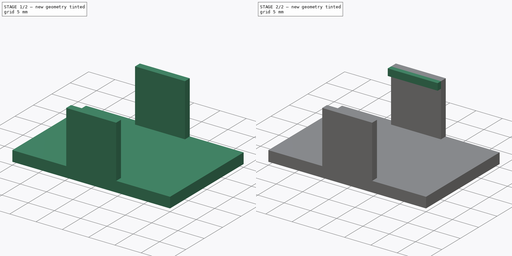
[diagram: build sequence overview — one tinted view per stage of 2, left to right]
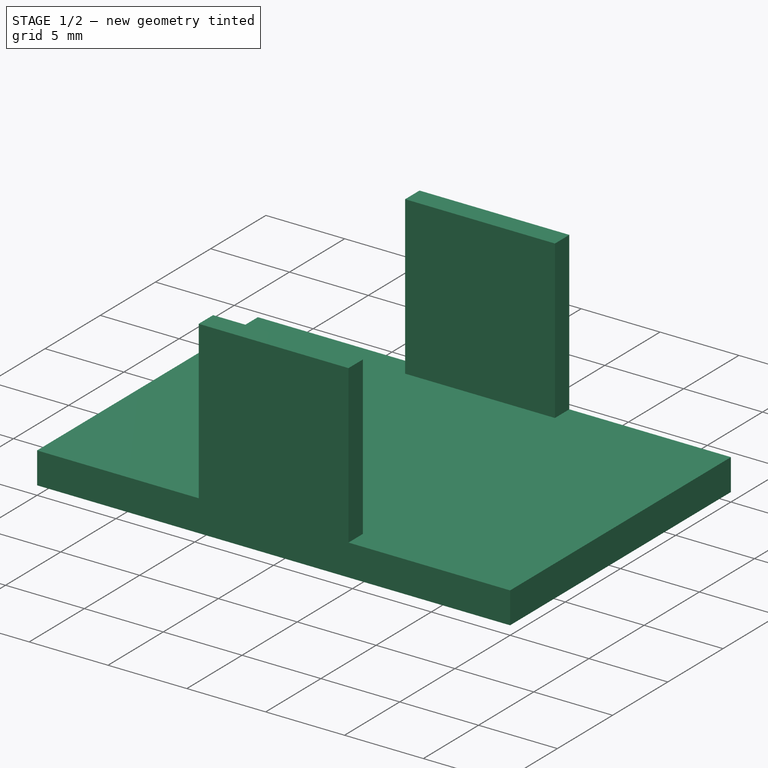
[diagram: stage 1 of 2 — iso view after this stage's code; geometry added in this stage tinted green]
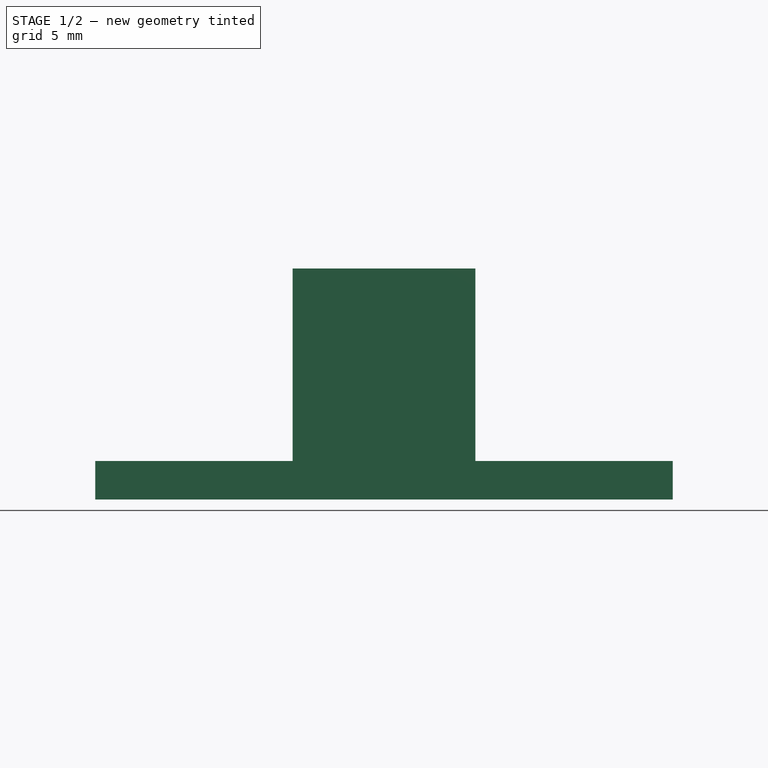
[diagram: stage 1 of 2 — front view after this stage's code; geometry added in this stage tinted green]
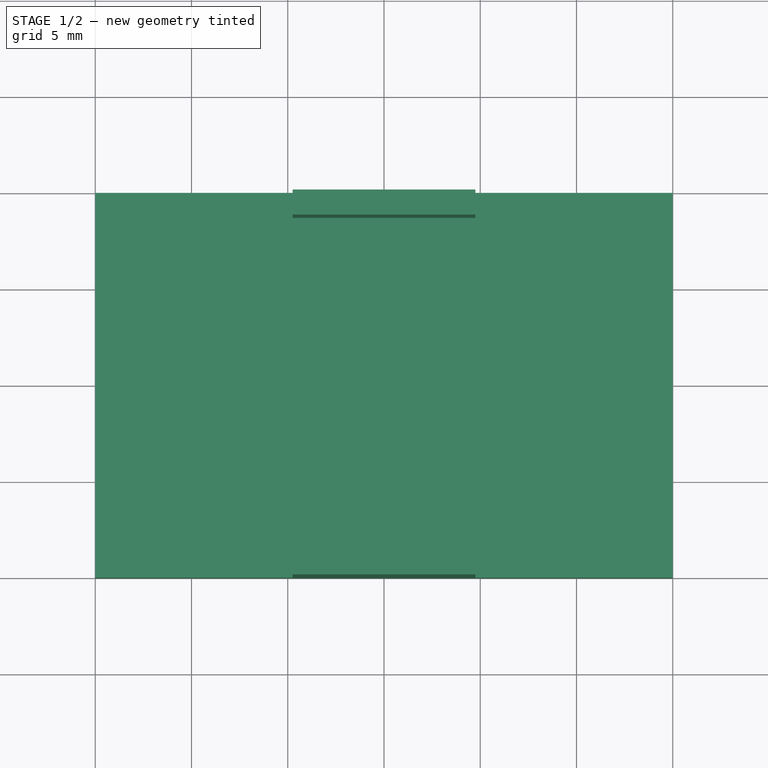
[diagram: stage 1 of 2 — top view after this stage's code; geometry added in this stage tinted green]
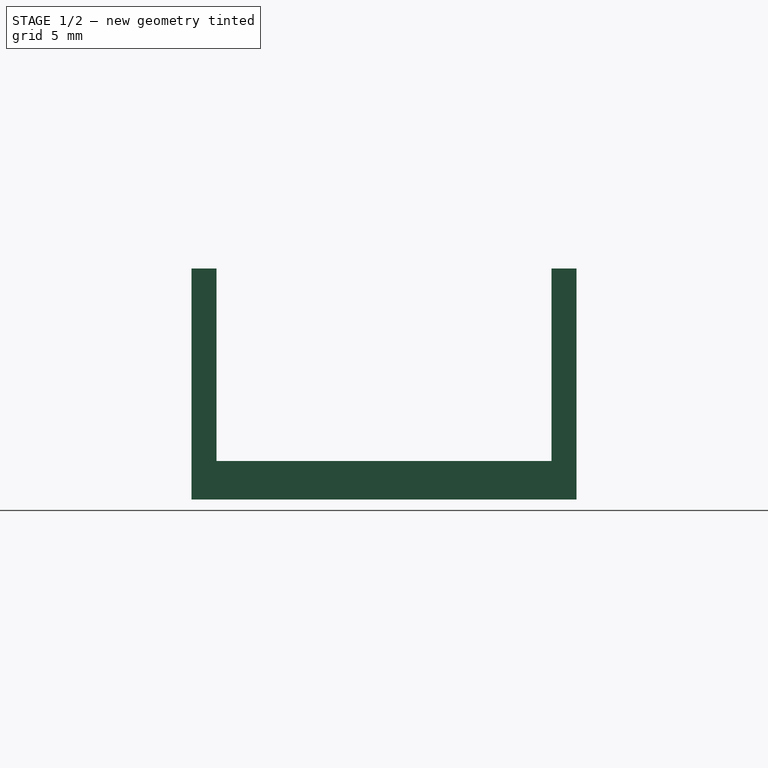
[diagram: stage 1 of 2 — right view after this stage's code; geometry added in this stage tinted green]
FCSTD DOCUMENT  (FreeCAD 0.21R33675 (Git))
Label: lid
License: All rights reserved
LicenseURL: http://en.wikipedia.org/wiki/All_rights_reserved
objects: Sketcher::SketchObject×3, PartDesign::Pad×3, PartDesign::Body×1
note: 10 computed .brp shape members not serialized (recipe doc carries the construction recipe); baked Part::Feature solids carry a one-line shape summary decoded from their .brp

FEATURE [Sketcher::SketchObject] Sketch  label="lid-sk"
  FullyConstrained = true
  MapMode = 5
  Support = -> [XY_Plane]
  sketch-geometry (6):
    g0: LineSegment StartX=-15 StartY=10 StartZ=0 EndX=15 EndY=10 EndZ=0
    g1: LineSegment StartX=15 StartY=10 StartZ=0 EndX=15 EndY=-10 EndZ=0
    g2: LineSegment StartX=15 StartY=-10 StartZ=0 EndX=-15 EndY=-10 EndZ=0
    g3: LineSegment StartX=-15 StartY=-10 StartZ=0 EndX=-15 EndY=10 EndZ=0
    g4: GeomPoint X=-15 Y=0 Z=0
    g5: GeomPoint X=0 Y=10 Z=0
  constraints (14):
    c: Coincident(g0,g1)
    c: Coincident(g1,g2)
    c: Coincident(g2,g3)
    c: Coincident(g3,g0)
    c: Horizontal(g0)
    c: Horizontal(g2)
    c: Vertical(g1)
    c: Vertical(g3)
    c: PointOnObject(g5,g-2)
    c: PointOnObject(g4,g-1)
    c: Symmetric(g0,g0,g5)
    c: Symmetric(g0,g2,g4)
    c: DistanceX(g0,g0) = 30
    c: DistanceY(g3,g3) = 20
FEATURE [PartDesign::Pad] Pad  label="lid-pad"
  Direction = (0,0,1)
  Length = 2
  Length2 = 10
  Profile = -> Sketch
  ReferenceAxis = -> Sketch [N_Axis]
  Type = 0
FEATURE [Sketcher::SketchObject] Sketch001  label="pillar-sk"
  ExternalGeometry = -> [Pad]
  FullyConstrained = true
  MapMode = 5
  Placement = pos=(0,0,2) rot=(0,0,1;0rad)
  Support = -> [Pad]
  sketch-geometry (9):
    g0: LineSegment StartX=-4.75 StartY=10 StartZ=0 EndX=4.75 EndY=10 EndZ=0
    g1: LineSegment StartX=4.75 StartY=10 StartZ=0 EndX=4.75 EndY=8.7 EndZ=0
    g2: LineSegment StartX=4.75 StartY=8.7 StartZ=0 EndX=-4.75 EndY=8.7 EndZ=0
    g3: LineSegment StartX=-4.75 StartY=8.7 StartZ=0 EndX=-4.75 EndY=10 EndZ=0
    g4: LineSegment StartX=4.75 StartY=-10 StartZ=0 EndX=-4.75 EndY=-10 EndZ=0
    g5: LineSegment StartX=-4.75 StartY=-10 StartZ=0 EndX=-4.75 EndY=-8.7 EndZ=0
    g6: LineSegment StartX=-4.75 StartY=-8.7 StartZ=0 EndX=4.75 EndY=-8.7 EndZ=0
    g7: LineSegment StartX=4.75 StartY=-8.7 StartZ=0 EndX=4.75 EndY=-10 EndZ=0
    g8: GeomPoint X=0 Y=10 Z=0
  constraints (23):
    c: Coincident(g0,g1)
    c: Coincident(g1,g2)
    c: Coincident(g2,g3)
    c: Coincident(g3,g0)
    c: Horizontal(g0)
    c: Horizontal(g2)
    c: Vertical(g1)
    c: Vertical(g3)
    c: PointOnObject(g0,g-3)
    c: Coincident(g4,g5)
    c: Coincident(g5,g6)
    c: Coincident(g6,g7)
    c: Coincident(g7,g4)
    c: Horizontal(g4)
    c: Horizontal(g6)
    c: PointOnObject(g4,g-4)
    c: DistanceY(g1,g1) = 1.3
    c: DistanceY(g7,g7) = 1.3
    c: Tangent(g7,g1)
    c: Tangent(g5,g3)
    c: DistanceX(g0,g0) = 9.5
    c: PointOnObject(g8,g-2)
    c: Symmetric(g0,g0,g8)
FEATURE [PartDesign::Pad] Pad001  label="pillar-pad"
  BaseFeature = -> Pad
  Direction = (0,0,1)
  Length = 10
  Length2 = 10
  Profile = -> Sketch001
  ReferenceAxis = -> Sketch001 [N_Axis]
  Type = 0
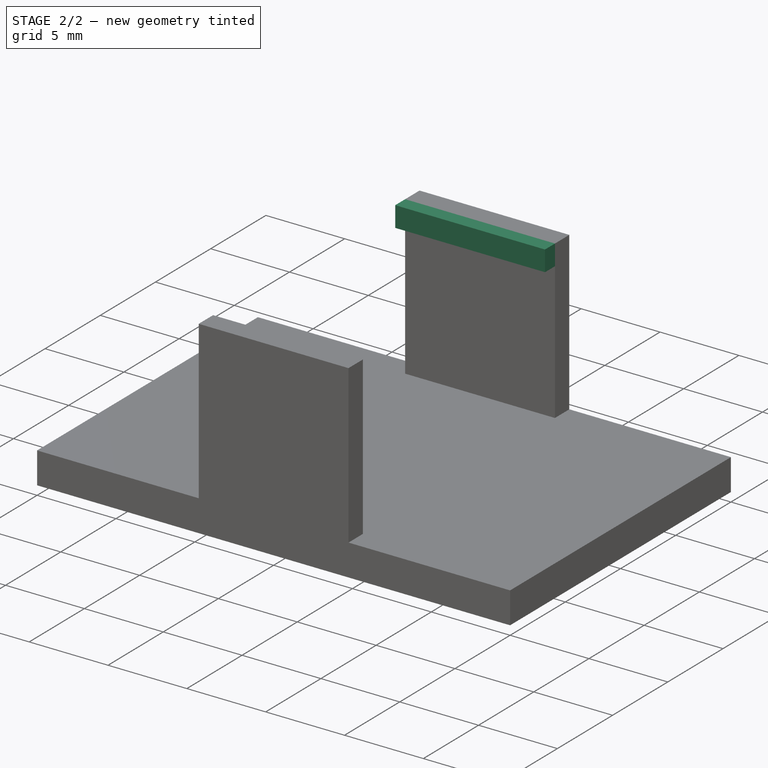
[diagram: stage 2 of 2 — iso view after this stage's code; geometry added in this stage tinted green]
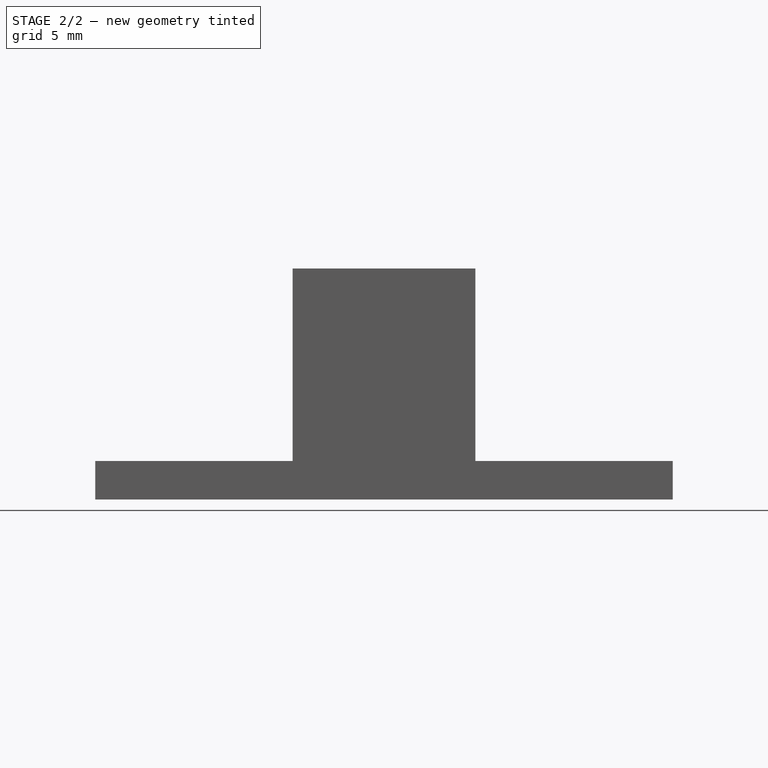
[diagram: stage 2 of 2 — front view after this stage's code; geometry added in this stage tinted green]
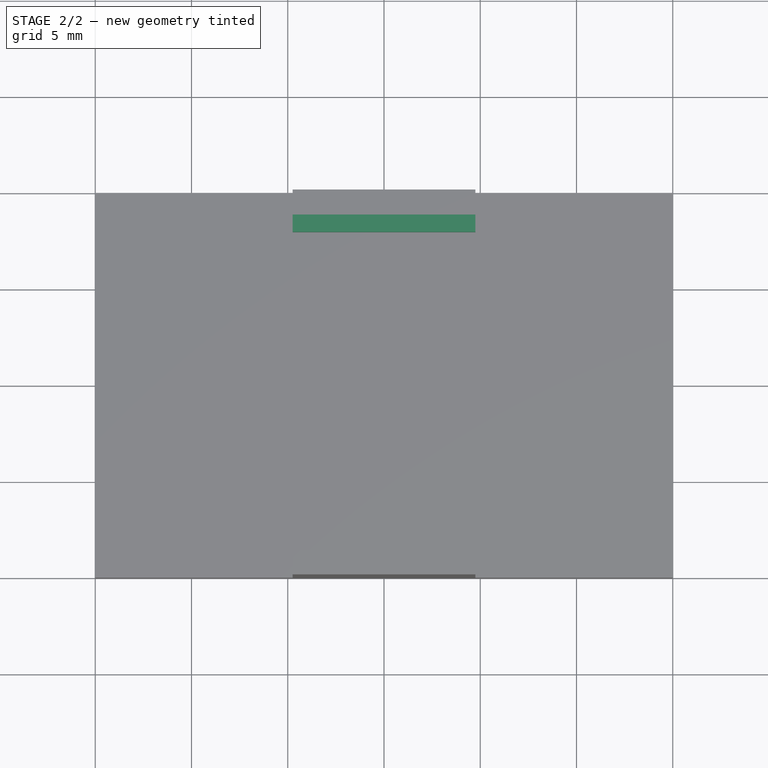
[diagram: stage 2 of 2 — top view after this stage's code; geometry added in this stage tinted green]
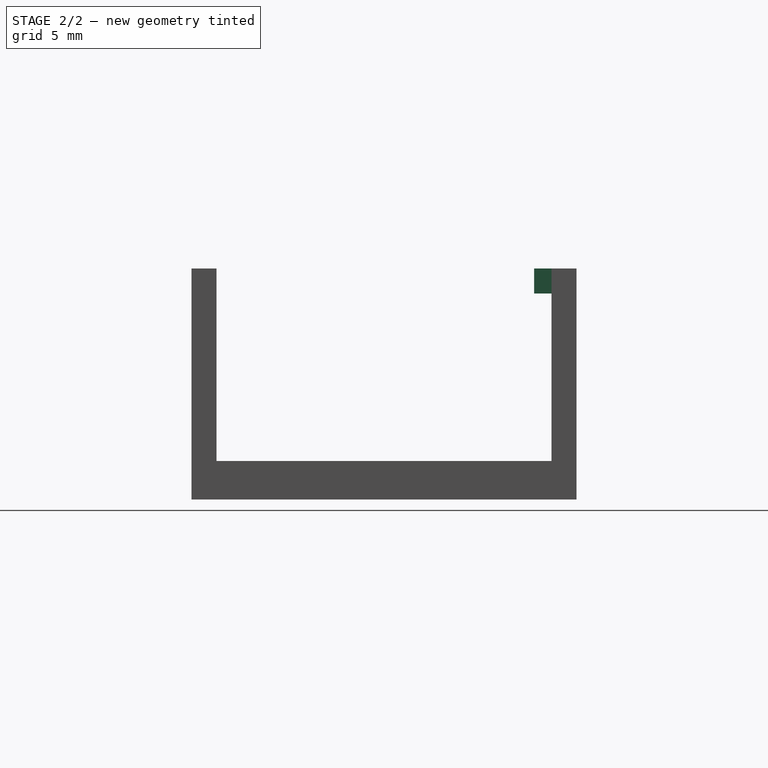
[diagram: stage 2 of 2 — right view after this stage's code; geometry added in this stage tinted green]
FEATURE [Sketcher::SketchObject] Sketch002  label="hook-sk"
  ExternalGeometry = -> [Pad001]
  FullyConstrained = true
  MapMode = 5
  Placement = pos=(0,0,12) rot=(0,0,1;0rad)
  Support = -> [Pad001]
  sketch-geometry (4):
    g0: LineSegment StartX=-4.75 StartY=10 StartZ=0 EndX=4.75 EndY=10 EndZ=0
    g1: LineSegment StartX=4.75 StartY=10 StartZ=0 EndX=4.75 EndY=7.8 EndZ=0
    g2: LineSegment StartX=4.75 StartY=7.8 StartZ=0 EndX=-4.75 EndY=7.8 EndZ=0
    g3: LineSegment StartX=-4.75 StartY=7.8 StartZ=0 EndX=-4.75 EndY=10 EndZ=0
  constraints (10):
    c: Coincident(g0,g1)
    c: Coincident(g1,g2)
    c: Coincident(g2,g3)
    c: Coincident(g3,g0)
    c: Horizontal(g2)
    c: Vertical(g1)
    c: Vertical(g3)
    c: Coincident(g0,g-3)
    c: Coincident(g0,g-3)
    c: DistanceY(g3,g3) = 2.2
FEATURE [PartDesign::Pad] Pad002  label="hook-pad"
  BaseFeature = -> Pad001
  Direction = (0,0,1)
  Length = 1.3
  Length2 = 10
  Profile = -> Sketch002
  ReferenceAxis = -> Sketch002 [N_Axis]
  Reversed = true
  Type = 0
FEATURE [PartDesign::Body] Body  label="lid"
  Group = -> [Sketch,Pad,Sketch001,Pad001,Sketch002,Pad002]
  Origin = -> Origin
  Tip = -> Pad002
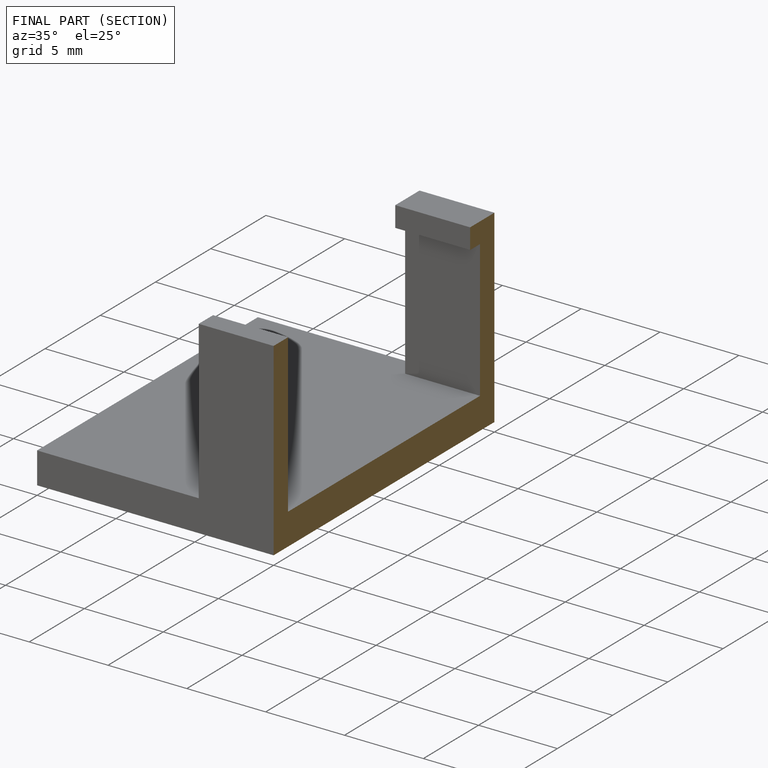
[diagram: finished part — half-section view (interior)]
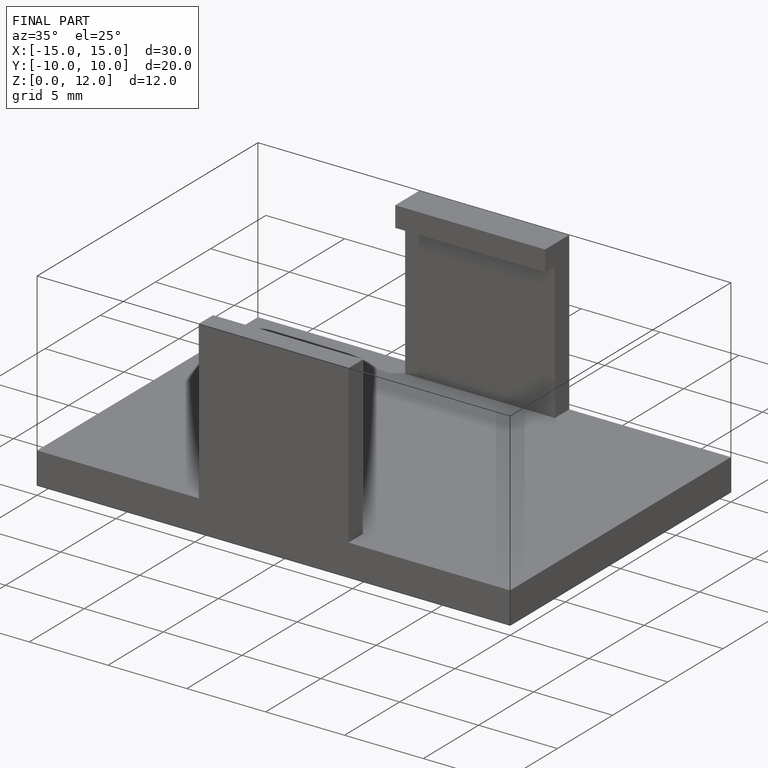
[diagram: finished part — iso view with bounding-box wireframe]
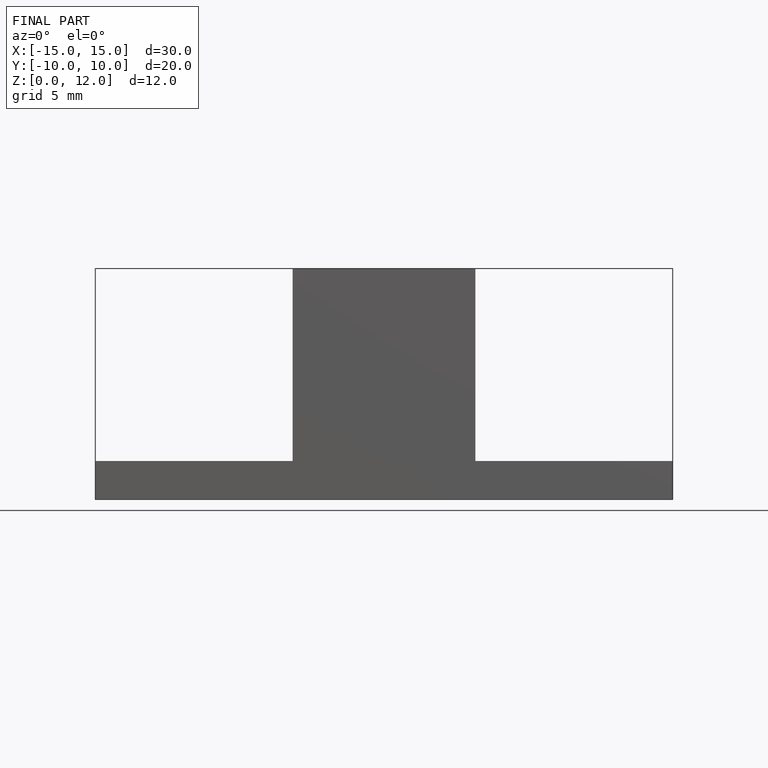
[diagram: finished part — front view with bounding-box wireframe]
